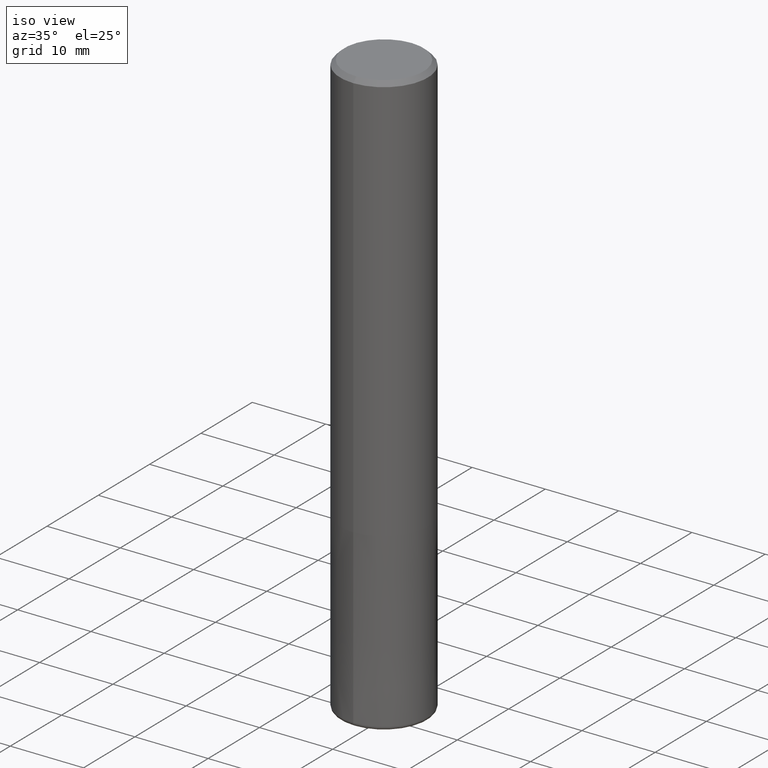
[diagram: clean part render]
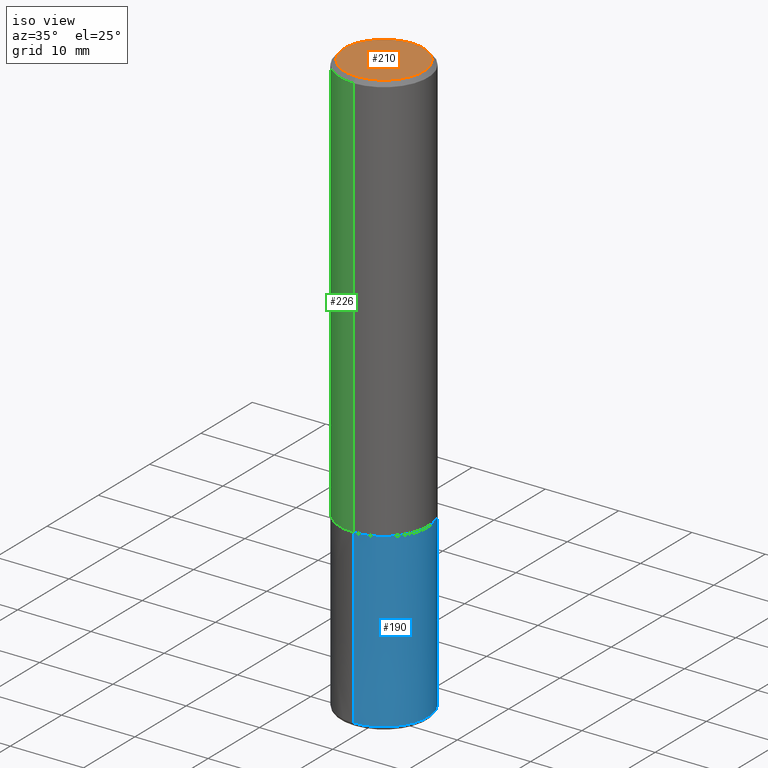
[diagram: same view with three faces highlighted in distinct colors, each labeled with its STEP entity id]
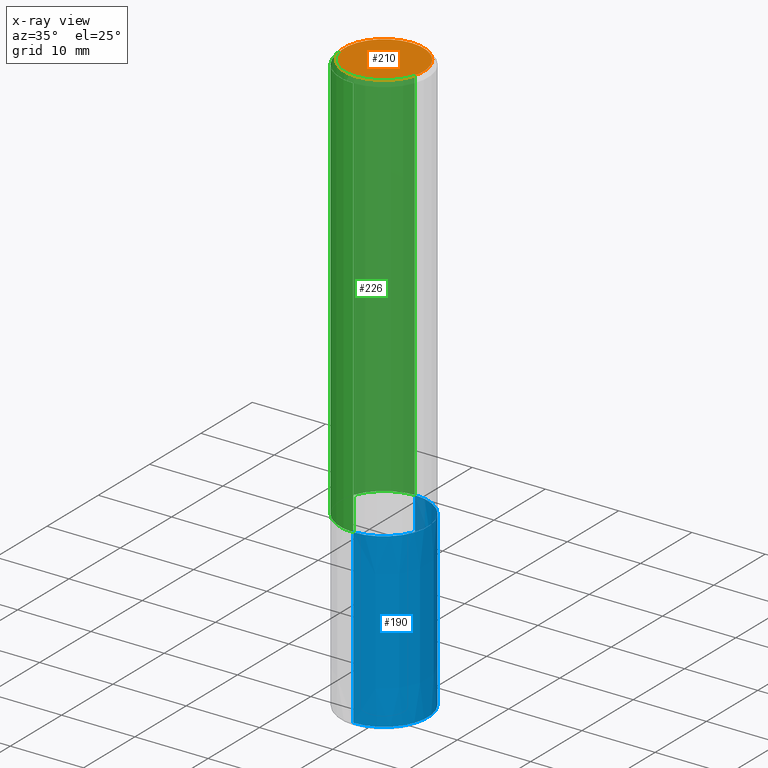
[diagram: x-ray of the same camera — body ghosted, the three highlighted faces saturated]
A machine part, iso view with three faces highlighted in distinct colors.
The next image is the same camera in x-ray (body ghosted, the three faces saturated) — at least one of them is partly hidden behind the body in this view.
Their STEP definitions:

[orange] entity #210 — the highlighted planar face has unit normal (-0, 0, 1).
#110=EDGE_CURVE('',#192,#182,#271,.T.);
#146=EDGE_CURVE('',#182,#192,#312,.T.);
#182=VERTEX_POINT('',#354);
#192=VERTEX_POINT('',#367);
#210=ADVANCED_FACE('',(#385),#386,.T.);
#271=CIRCLE('',#447,5.4);
#312=CIRCLE('',#500,5.4);
#354=CARTESIAN_POINT('',(6.61287431064084E-016,-5.4,0.0));
#367=CARTESIAN_POINT('',(0.0,5.4,0.0));
#385=FACE_OUTER_BOUND('',#590,.T.);
#386=PLANE('',#591);
#447=AXIS2_PLACEMENT_3D('',#646,#647,#648);
#500=AXIS2_PLACEMENT_3D('',#698,#699,#700);
#590=EDGE_LOOP('',(#788,#789));
#591=AXIS2_PLACEMENT_3D('',#790,#791,#792);
#646=CARTESIAN_POINT('',(0.0,0.0,0.0));
#647=DIRECTION('',(0.0,0.0,-1.0));
#648=DIRECTION('',(0.0,1.0,0.0));
#698=CARTESIAN_POINT('',(0.0,0.0,0.0));
#699=DIRECTION('',(0.0,0.0,-1.0));
#700=DIRECTION('',(0.0,1.0,0.0));
#788=ORIENTED_EDGE('',*,*,#110,.F.);
#789=ORIENTED_EDGE('',*,*,#146,.F.);
#790=CARTESIAN_POINT('',(0.0,2.7,0.0));
#791=DIRECTION('',(-0.0,0.0,1.0));
#792=DIRECTION('',(0.0,-1.0,0.0));

[blue] entity #190 — the highlighted conical surface has half-angle 0 deg.
#126=VERTEX_POINT('',#287);
#136=EDGE_CURVE('',#228,#232,#298,.T.);
#162=EDGE_CURVE('',#228,#194,#332,.T.);
#190=ADVANCED_FACE('',(#364),#365,.T.);
#194=VERTEX_POINT('',#369);
#196=EDGE_CURVE('',#232,#126,#371,.T.);
#228=VERTEX_POINT('',#409);
#232=VERTEX_POINT('',#413);
#240=EDGE_CURVE('',#126,#194,#421,.T.);
#287=CARTESIAN_POINT('',(7.34763812293426E-016,-6.0,-79.5));
#298=LINE('',#482,#483);
#332=CIRCLE('',#523,5.9999);
#364=FACE_OUTER_BOUND('',#564,.T.);
#365=CONICAL_SURFACE('',#565,5.99995,4.25531914890057E-006);
#369=CARTESIAN_POINT('',(7.34751566229888E-016,-5.9999,-56.0));
#371=CIRCLE('',#572,6.0);
#409=CARTESIAN_POINT('',(0.0,5.9999,-56.0));
#413=CARTESIAN_POINT('',(0.0,6.0,-79.5));
#421=LINE('',#631,#632);
#482=CARTESIAN_POINT('',(-7.34757689261657E-016,5.99995,-67.75));
#483=VECTOR('',#672,1.0);
#523=AXIS2_PLACEMENT_3D('',#731,#732,#733);
#564=EDGE_LOOP('',(#771,#772,#773,#774));
#565=AXIS2_PLACEMENT_3D('',#775,#776,#777);
#572=AXIS2_PLACEMENT_3D('',#778,#779,#780);
#631=CARTESIAN_POINT('',(7.34757689261657E-016,-5.99995,-67.75));
#632=VECTOR('',#843,1.0);
#672=DIRECTION('',(-5.21109086726994E-022,4.25531914888773E-006,-0.999999999990946));
#731=CARTESIAN_POINT('',(0.0,0.0,-56.0));
#732=DIRECTION('',(0.0,0.0,-1.0));
#733=DIRECTION('',(0.0,1.0,0.0));
#771=ORIENTED_EDGE('',*,*,#136,.F.);
#772=ORIENTED_EDGE('',*,*,#162,.T.);
#773=ORIENTED_EDGE('',*,*,#240,.F.);
#774=ORIENTED_EDGE('',*,*,#196,.F.);
#775=CARTESIAN_POINT('',(0.0,0.0,-67.75));
#776=DIRECTION('',(0.0,-0.0,-1.0));
#777=DIRECTION('',(0.0,1.0,0.0));
#778=CARTESIAN_POINT('',(0.0,0.0,-79.5));
#779=DIRECTION('',(0.0,0.0,-1.0));
#780=DIRECTION('',(0.0,1.0,0.0));
#843=DIRECTION('',(-5.21109086726994E-022,4.25531914888773E-006,0.999999999990946));

[green] entity #226 — the highlighted cylindrical surface (partial cylindrical patch) has radius 6 mm, axis along (-0, -0, 1).
#106=EDGE_CURVE('',#122,#206,#267,.T.);
#112=EDGE_CURVE('',#206,#154,#273,.T.);
#120=VERTEX_POINT('',#281);
#122=VERTEX_POINT('',#283);
#124=EDGE_CURVE('',#120,#122,#285,.T.);
#154=VERTEX_POINT('',#322);
#200=EDGE_CURVE('',#120,#154,#375,.T.);
#206=VERTEX_POINT('',#381);
#226=ADVANCED_FACE('',(#406),#407,.T.);
#267=CIRCLE('',#441,6.0);
#273=LINE('',#450,#451);
#281=CARTESIAN_POINT('',(7.34763812293426E-016,-6.0,-56.0));
#283=CARTESIAN_POINT('',(7.34763812293426E-016,-6.0,-0.600000000000001));
#285=LINE('',#465,#466);
#322=CARTESIAN_POINT('',(0.0,6.0,-56.0));
#375=CIRCLE('',#577,6.0);
#381=CARTESIAN_POINT('',(0.0,6.0,-0.600000000000001));
#406=FACE_OUTER_BOUND('',#613,.T.);
#407=CYLINDRICAL_SURFACE('',#614,6.0);
#441=AXIS2_PLACEMENT_3D('',#640,#641,#642);
#450=CARTESIAN_POINT('',(-7.34763812293426E-016,6.0,-28.3));
#451=VECTOR('',#649,1.0);
#465=CARTESIAN_POINT('',(7.34763812293426E-016,-6.0,-28.3));
#466=VECTOR('',#657,1.0);
#577=AXIS2_PLACEMENT_3D('',#781,#782,#783);
#613=EDGE_LOOP('',(#830,#831,#832,#833));
#614=AXIS2_PLACEMENT_3D('',#834,#835,#836);
#640=CARTESIAN_POINT('',(0.0,0.0,-0.600000000000001));
#641=DIRECTION('',(0.0,0.0,-1.0));
#642=DIRECTION('',(0.0,1.0,0.0));
#649=DIRECTION('',(0.0,0.0,-1.0));
#657=DIRECTION('',(-0.0,-0.0,1.0));
#781=CARTESIAN_POINT('',(0.0,0.0,-56.0));
#782=DIRECTION('',(0.0,0.0,-1.0));
#783=DIRECTION('',(0.0,1.0,0.0));
#830=ORIENTED_EDGE('',*,*,#112,.T.);
#831=ORIENTED_EDGE('',*,*,#200,.F.);
#832=ORIENTED_EDGE('',*,*,#124,.T.);
#833=ORIENTED_EDGE('',*,*,#106,.T.);
#834=CARTESIAN_POINT('',(0.0,0.0,-28.3));
#835=DIRECTION('',(-0.0,-0.0,1.0));
#836=DIRECTION('',(0.0,1.0,0.0));